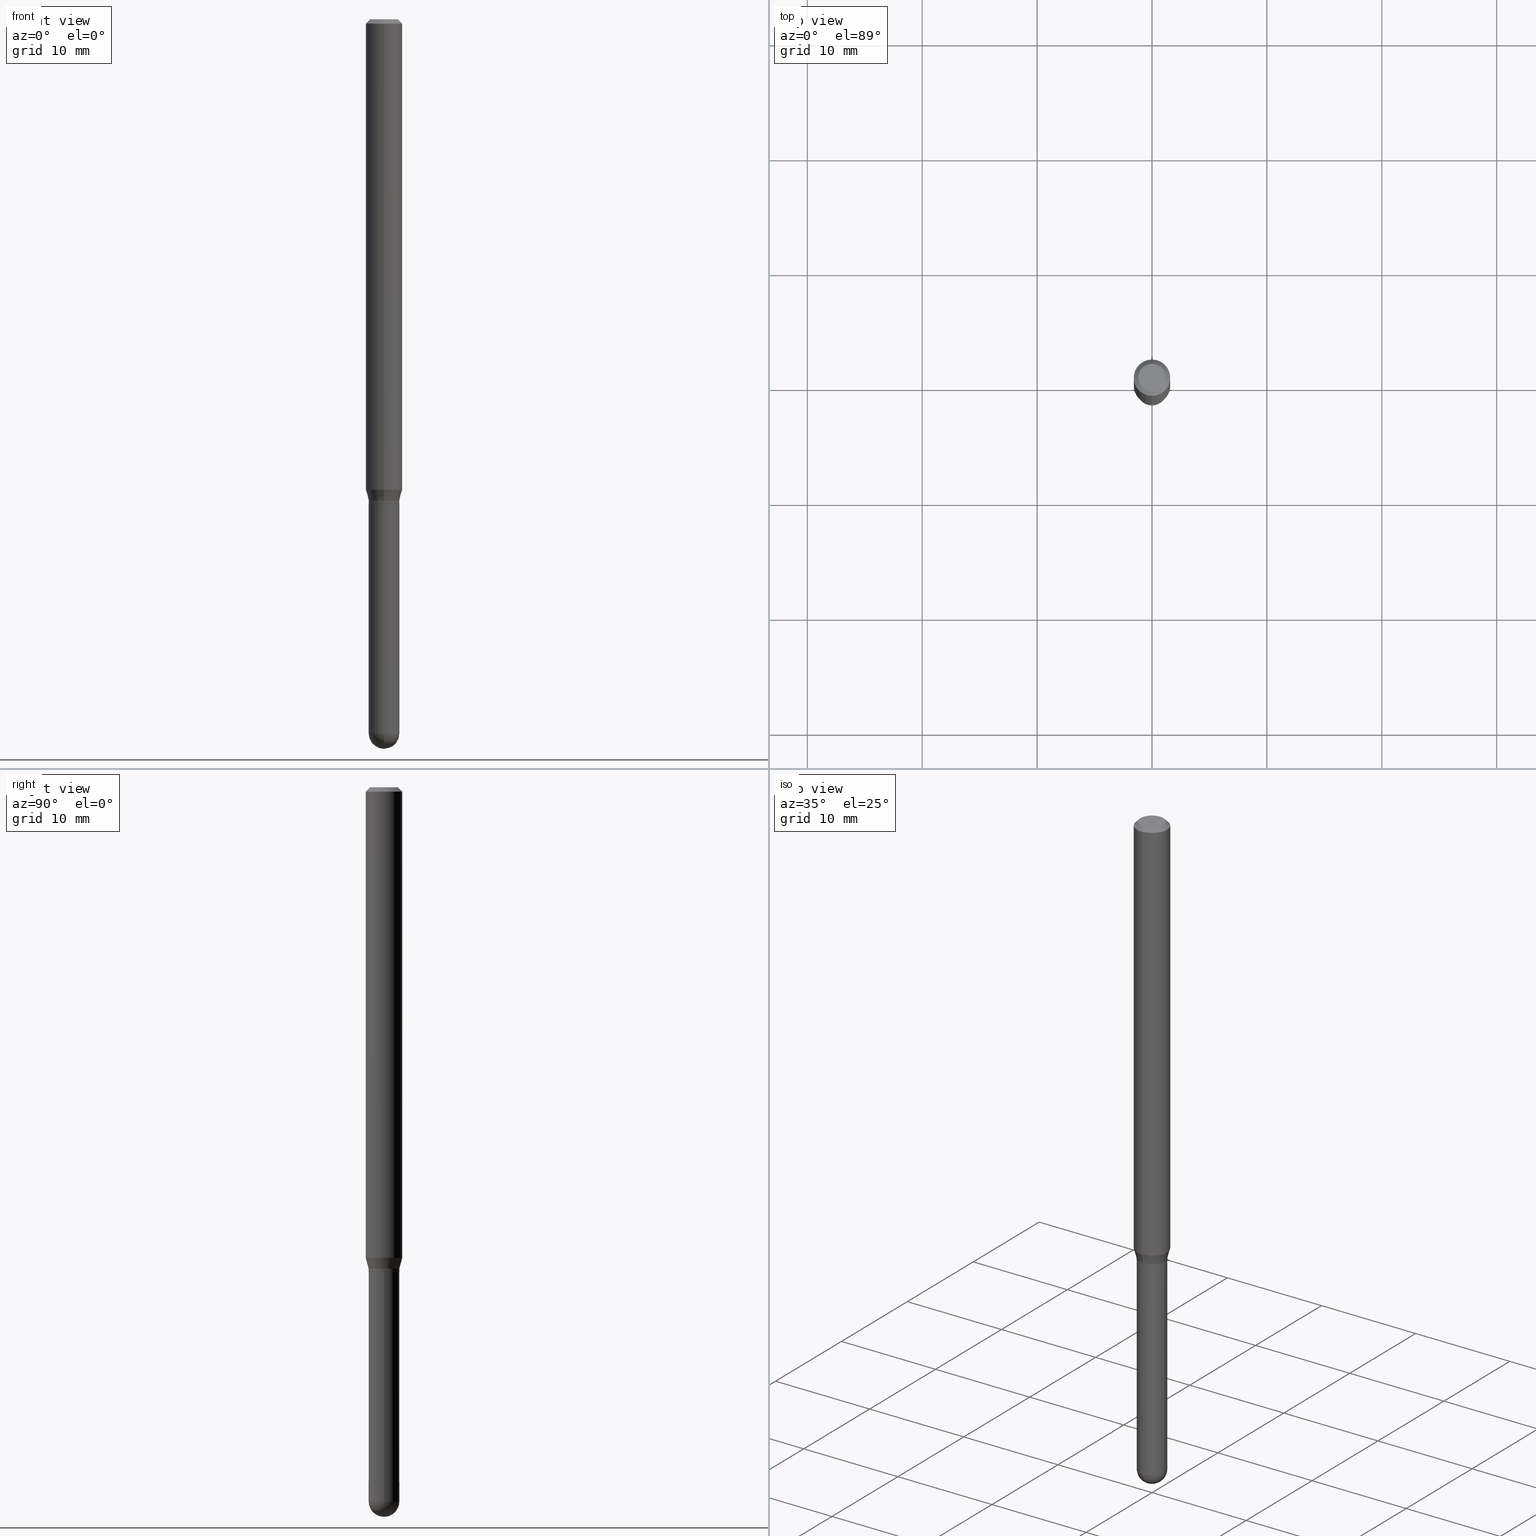
[diagram: canonical four-view strip — front | top / right | iso, engineering-drawing reading convention]
A machine part, canonical four-view strip (front | top / right | iso — engineering-drawing reading convention). The complete STEP part file that produces these views, byte-faithful:
ISO-10303-21;
HEADER;
FILE_DESCRIPTION (( 'STEP AP203' ),
    '1' );
FILE_NAME ('04506.STEP',
    '2024-03-08T20:15:21',
    ( '' ),
    ( '' ),
    'SwSTEP 2.0',
    'SolidWorks 2023',
    '' );
FILE_SCHEMA (( 'CONFIG_CONTROL_DESIGN' ));
ENDSEC;

DATA;
#1 = VERTEX_POINT ( 'NONE', #390 ) ;
#2 = DIRECTION ( 'NONE',  ( -1.000000000000000000, 7.105427357601001070E-15, -4.926315508542082329E-29 ) ) ;
#3 = ORIENTED_EDGE ( 'NONE', *, *, #80, .T. ) ;
#4 = PERSON_AND_ORGANIZATION_ROLE ( 'creator' ) ;
#5 =( GEOMETRIC_REPRESENTATION_CONTEXT ( 3 ) GLOBAL_UNCERTAINTY_ASSIGNED_CONTEXT ( ( #218 ) ) GLOBAL_UNIT_ASSIGNED_CONTEXT ( ( #136, #319, #330 ) ) REPRESENTATION_CONTEXT ( 'NONE', 'WORKASPACE' ) );
#6 = FACE_OUTER_BOUND ( 'NONE', #451, .T. ) ;
#7 = PRODUCT_RELATED_PRODUCT_CATEGORY ( 'detail', '', ( #171 ) ) ;
#8 = ORIENTED_EDGE ( 'NONE', *, *, #338, .F. ) ;
#9 = APPROVAL_STATUS ( 'not_yet_approved' ) ;
#10 = CARTESIAN_POINT ( 'NONE',  ( 3.668046898412900305E-31, -5.237445854319827038E-17, -0.01500000000000006710 ) ) ;
#11 = ADVANCED_FACE ( 'NONE', ( #325 ), #318, .T. ) ;
#12 = CIRCLE ( 'NONE', #260, 0.05250000000000019235 ) ;
#13 = AXIS2_PLACEMENT_3D ( 'NONE', #357, #163, #463 ) ;
#14 = AXIS2_PLACEMENT_3D ( 'NONE', #270, #506, #118 ) ;
#15 = APPROVAL ( #131, 'UNSPECIFIED' ) ;
#16 = APPROVAL_ROLE ( '' ) ;
#17 = CARTESIAN_POINT ( 'NONE',  ( -3.773273898774340269E-16, -0.04749999999999999362, 1.003593064594752903E-16 ) ) ;
#18 = DIRECTION ( 'NONE',  ( -2.445364598941922338E-29, 3.491630569546536123E-15, 1.000000000000000000 ) ) ;
#19 = CALENDAR_DATE ( 2024, 8, 3 ) ;
#20 = AXIS2_PLACEMENT_3D ( 'NONE', #38, #328, #480 ) ;
#21 = CIRCLE ( 'NONE', #388, 0.05249999999999999806 ) ;
#22 = LINE ( 'NONE', #104, #70 ) ;
#23 = APPROVAL_STATUS ( 'not_yet_approved' ) ;
#24 = CC_DESIGN_DATE_AND_TIME_ASSIGNMENT ( #139, #336, ( #251 ) ) ;
#25 = EDGE_LOOP ( 'NONE', ( #428, #193, #308, #108 ) ) ;
#26 = CARTESIAN_POINT ( 'NONE',  ( -0.05249999999999999806, 3.730349362740525838E-16, -2.582440922383825311E-30 ) ) ;
#27 = PRODUCT_DEFINITION_FORMATION_WITH_SPECIFIED_SOURCE ( 'ANY', '', #171, .NOT_KNOWN. ) ;
#28 = CARTESIAN_POINT ( 'NONE',  ( 4.059478218267327378E-29, -5.795859022479622985E-15, -1.660000000000000364 ) ) ;
#29 = ORIENTED_EDGE ( 'NONE', *, *, #274, .T. ) ;
#30 = VERTEX_POINT ( 'NONE', #276 ) ;
#31 = DIRECTION ( 'NONE',  ( -2.445364598941922338E-29, 3.491630569546536123E-15, 1.000000000000000000 ) ) ;
#32 = ORIENTED_EDGE ( 'NONE', *, *, #455, .T. ) ;
#33 = EDGE_LOOP ( 'NONE', ( #72, #344, #8, #227 ) ) ;
#34 = EDGE_CURVE ( 'NONE', #304, #312, #94, .T. ) ;
#35 = CARTESIAN_POINT ( 'NONE',  ( 0.05249999999999999806, -6.162464563058152145E-15, -1.660000000000000364 ) ) ;
#36 = AXIS2_PLACEMENT_3D ( 'NONE', #247, #316, #503 ) ;
#37 = AXIS2_PLACEMENT_3D ( 'NONE', #202, #355, #510 ) ;
#38 = CARTESIAN_POINT ( 'NONE',  ( 4.034851588254172670E-29, -5.761190439751784880E-15, -1.650000000000000133 ) ) ;
#39 = DIRECTION ( 'NONE',  ( -6.982962677686266711E-15, -1.000000000000000000, 5.253553833969737838E-15 ) ) ;
#40 = VERTEX_POINT ( 'NONE', #475 ) ;
#41 = EDGE_CURVE ( 'NONE', #1, #269, #425, .T. ) ;
#42 = FACE_OUTER_BOUND ( 'NONE', #111, .T. ) ;
#43 = DIRECTION ( 'NONE',  ( -6.982962677686265922E-15, -1.000000000000000000, 3.491630569546535729E-15 ) ) ;
#44 = VERTEX_POINT ( 'NONE', #358 ) ;
#45 = CARTESIAN_POINT ( 'NONE',  ( 4.059305234243592639E-29, -5.796106745447252600E-15, -1.660000000000000586 ) ) ;
#46 = ADVANCED_FACE ( 'NONE', ( #6 ), #137, .T. ) ;
#47 = DIRECTION ( 'NONE',  ( -2.445364598941922338E-29, 3.491630569546536123E-15, 1.000000000000000000 ) ) ;
#48 = PERSON_AND_ORGANIZATION_ROLE ( 'design_owner' ) ;
#49 = ORIENTED_EDGE ( 'NONE', *, *, #180, .T. ) ;
#50 = MECHANICAL_CONTEXT ( 'NONE', #146, 'mechanical' ) ;
#51 = ADVANCED_FACE ( 'NONE', ( #212 ), #509, .T. ) ;
#52 = CARTESIAN_POINT ( 'NONE',  ( 3.943589338991358859E-29, -5.630881012883705018E-15, -1.612679491924312369 ) ) ;
#53 = DIRECTION ( 'NONE',  ( 4.937700262164548042E-15, 0.7071067811865451302, -0.7071067811865499042 ) ) ;
#54 = PERSON ( 'UNSPECIFIED', 'UNSPECIFIED', 'UNSPECIFIED', ('UNSPECIFIED'), ('UNSPECIFIED'), ('UNSPECIFIED') ) ;
#55 = ADVANCED_FACE ( 'NONE', ( #210 ), #287, .F. ) ;
#56 = CARTESIAN_POINT ( 'NONE',  ( 4.059305234243592639E-29, -5.796106745447252600E-15, -1.660000000000000586 ) ) ;
#57 = APPROVAL_DATE_TIME ( #255, #278 ) ;
#58 = DIRECTION ( 'NONE',  ( -6.982962677686265922E-15, -1.000000000000000000, 4.370956789862821150E-15 ) ) ;
#59 = VECTOR ( 'NONE', #429, 39.37007874015748143 ) ;
#60 = CIRCLE ( 'NONE', #101, 0.06250000000000000000 ) ;
#61 = LINE ( 'NONE', #102, #107 ) ;
#62 = FACE_OUTER_BOUND ( 'NONE', #346, .T. ) ;
#63 = CIRCLE ( 'NONE', #299, 0.05250000000000002581 ) ;
#64 = VECTOR ( 'NONE', #315, 39.37007874015748143 ) ;
#65 = APPROVAL_DATE_TIME ( #98, #466 ) ;
#66 = ADVANCED_FACE ( 'NONE', ( #91 ), #144, .T. ) ;
#67 = VERTEX_POINT ( 'NONE', #248 ) ;
#68 = EDGE_CURVE ( 'NONE', #44, #348, #442, .T. ) ;
#69 = LINE ( 'NONE', #26, #64 ) ;
#70 = VECTOR ( 'NONE', #486, 39.37007874015748143 ) ;
#71 = VECTOR ( 'NONE', #134, 39.37007874015748143 ) ;
#72 = ORIENTED_EDGE ( 'NONE', *, *, #389, .F. ) ;
#73 = VERTEX_POINT ( 'NONE', #397 ) ;
#74 = FACE_OUTER_BOUND ( 'NONE', #147, .T. ) ;
#75 = CARTESIAN_POINT ( 'NONE',  ( 0.000000000000000000, 0.000000000000000000, 0.000000000000000000 ) ) ;
#76 = VERTEX_POINT ( 'NONE', #464 ) ;
#77 = DIRECTION ( 'NONE',  ( -2.445468806185136597E-29, 3.491481338843145583E-15, 1.000000000000000000 ) ) ;
#78 = CARTESIAN_POINT ( 'NONE',  ( 4.034851588254172670E-29, -5.761190439751784880E-15, -1.650000000000000133 ) ) ;
#79 = DIRECTION ( 'NONE',  ( 1.000000000000000000, -6.982962677686268288E-15, 0.000000000000000000 ) ) ;
#80 = EDGE_CURVE ( 'NONE', #382, #73, #242, .T. ) ;
#81 = ORIENTED_EDGE ( 'NONE', *, *, #156, .F. ) ;
#82 = CIRCLE ( 'NONE', #377, 0.06250000000000000000 ) ;
#83 = AXIS2_PLACEMENT_3D ( 'NONE', #349, #379, #371 ) ;
#84 = VECTOR ( 'NONE', #347, 39.37007874015748143 ) ;
#85 = DIRECTION ( 'NONE',  ( -2.445364598941922338E-29, 3.491630569546536123E-15, 1.000000000000000000 ) ) ;
#86 =( LENGTH_UNIT ( ) NAMED_UNIT ( * ) SI_UNIT ( $, .METRE. ) );
#87 = FACE_OUTER_BOUND ( 'NONE', #392, .T. ) ;
#88 = APPLICATION_PROTOCOL_DEFINITION ( 'international standard', 'config_control_design', 1994, #146 ) ;
#89 = VERTEX_POINT ( 'NONE', #127 ) ;
#90 = CARTESIAN_POINT ( 'NONE',  ( 0.000000000000000000, 0.000000000000000000, 0.000000000000000000 ) ) ;
#91 = FACE_OUTER_BOUND ( 'NONE', #310, .T. ) ;
#92 = DIRECTION ( 'NONE',  ( 6.982962677686265922E-15, 1.000000000000000000, -3.491630569546536123E-15 ) ) ;
#93 = CARTESIAN_POINT ( 'NONE',  ( 0.000000000000000000, 0.000000000000000000, 0.000000000000000000 ) ) ;
#94 = CIRCLE ( 'NONE', #361, 0.04749999999999999362 ) ;
#95 = CARTESIAN_POINT ( 'NONE',  ( 3.666055405785695399E-16, 0.05249999999999419714, -1.660000000000000586 ) ) ;
#96 = EDGE_CURVE ( 'NONE', #350, #348, #395, .T. ) ;
#97 = CARTESIAN_POINT ( 'NONE',  ( 3.694822225952925581E-16, 0.05199999999999419670, -1.660000000000000808 ) ) ;
#98 = DATE_AND_TIME ( #99, #324 ) ;
#99 = CALENDAR_DATE ( 2024, 8, 3 ) ;
#100 = VECTOR ( 'NONE', #141, 39.37007874015748143 ) ;
#101 = AXIS2_PLACEMENT_3D ( 'NONE', #391, #253, #512 ) ;
#102 = CARTESIAN_POINT ( 'NONE',  ( 3.730349362740942455E-16, 0.05249999999999442613, -1.650000000000000355 ) ) ;
#103 = CYLINDRICAL_SURFACE ( 'NONE', #241, 0.05249999999999991479 ) ;
#104 = CARTESIAN_POINT ( 'NONE',  ( -3.631140592396452308E-16, -0.05200000000000579159, -1.660000000000000364 ) ) ;
#105 = PERSON_AND_ORGANIZATION ( #54, #456 ) ;
#106 = ADVANCED_FACE ( 'NONE', ( #87 ), #434, .T. ) ;
#107 = VECTOR ( 'NONE', #221, 39.37007874015748854 ) ;
#108 = ORIENTED_EDGE ( 'NONE', *, *, #488, .F. ) ;
#109 = EDGE_CURVE ( 'NONE', #382, #1, #300, .T. ) ;
#110 = EDGE_LOOP ( 'NONE', ( #230, #3, #246, #228 ) ) ;
#111 = EDGE_LOOP ( 'NONE', ( #191, #380, #305, #279, #396 ) ) ;
#112 = CARTESIAN_POINT ( 'NONE',  ( 0.000000000000000000, 0.000000000000000000, 0.000000000000000000 ) ) ;
#113 = AXIS2_PLACEMENT_3D ( 'NONE', #497, #458, #150 ) ;
#114 = EDGE_LOOP ( 'NONE', ( #383, #187, #117, #174 ) ) ;
#115 = CYLINDRICAL_SURFACE ( 'NONE', #14, 0.05249999999999991479 ) ;
#116 = ORIENTED_EDGE ( 'NONE', *, *, #109, .T. ) ;
#117 = ORIENTED_EDGE ( 'NONE', *, *, #96, .T. ) ;
#118 = DIRECTION ( 'NONE',  ( -6.982962677686266711E-15, -1.000000000000000000, 3.491630569546536123E-15 ) ) ;
#119 = ORIENTED_EDGE ( 'NONE', *, *, #109, .F. ) ;
#120 = ADVANCED_BREP_SHAPE_REPRESENTATION ( '04506', ( #333, #152, #378 ), #5 ) ;
#121 = DIRECTION ( 'NONE',  ( -6.982962677686265922E-15, -1.000000000000000000, 3.483106191921935554E-15 ) ) ;
#122 = CARTESIAN_POINT ( 'NONE',  ( -0.05249999999999999806, -6.797594863375057759E-15, -2.447500000000000231 ) ) ;
#123 = CALENDAR_DATE ( 2024, 8, 3 ) ;
#124 = ORIENTED_EDGE ( 'NONE', *, *, #203, .F. ) ;
#125 = VECTOR ( 'NONE', #478, 39.37007874015748143 ) ;
#126 = CARTESIAN_POINT ( 'NONE',  ( 4.058082551944121360E-29, -5.794360930162478109E-15, -1.659500000000000419 ) ) ;
#127 = CARTESIAN_POINT ( 'NONE',  ( 6.111427203953745667E-29, -8.731918044955625447E-15, -2.500000000000000000 ) ) ;
#128 = CARTESIAN_POINT ( 'NONE',  ( 0.000000000000000000, 0.000000000000000000, 0.000000000000000000 ) ) ;
#129 = CYLINDRICAL_SURFACE ( 'NONE', #198, 0.05249999999999999806 ) ;
#130 = CARTESIAN_POINT ( 'NONE',  ( -4.364351673553916201E-16, -0.06250000000000000000, 2.182269105966584831E-16 ) ) ;
#131 = APPROVAL_STATUS ( 'not_yet_approved' ) ;
#132 = CARTESIAN_POINT ( 'NONE',  ( 5.980795280119930350E-29, -8.551829972514122554E-15, -2.447500000000000231 ) ) ;
#133 = CARTESIAN_POINT ( 'NONE',  ( 0.000000000000000000, 0.000000000000000000, 0.000000000000000000 ) ) ;
#134 = DIRECTION ( 'NONE',  ( -2.445364598941922057E-29, 3.491630569546536123E-15, 1.000000000000000000 ) ) ;
#135 = CARTESIAN_POINT ( 'NONE',  ( 5.980795280119930350E-29, -8.551829972514122554E-15, -2.447500000000000231 ) ) ;
#136 =( CONVERSION_BASED_UNIT ( 'INCH', #284 ) LENGTH_UNIT ( ) NAMED_UNIT ( #479 ) );
#137 = CONICAL_SURFACE ( 'NONE', #20, 0.05250000000000019235, 0.2617993877991508511 ) ;
#138 = AXIS2_PLACEMENT_3D ( 'NONE', #381, #306, #194 ) ;
#139 = DATE_AND_TIME ( #19, #483 ) ;
#140 = EDGE_CURVE ( 'NONE', #76, #271, #231, .T. ) ;
#141 = DIRECTION ( 'NONE',  ( 5.024295867785445738E-15, 0.7071067811861817543, 0.7071067811869132802 ) ) ;
#142 = EDGE_CURVE ( 'NONE', #348, #44, #12, .T. ) ;
#143 = DIRECTION ( 'NONE',  ( 1.000000000000000000, -6.982962677686268288E-15, 0.000000000000000000 ) ) ;
#144 = CONICAL_SURFACE ( 'NONE', #504, 0.05250000000000019235, 0.2617993877991508511 ) ;
#145 = AXIS2_PLACEMENT_3D ( 'NONE', #188, #266, #419 ) ;
#146 = APPLICATION_CONTEXT ( 'configuration controlled 3d designs of mechanical parts and assemblies' ) ;
#147 = EDGE_LOOP ( 'NONE', ( #453, #116, #153, #195 ) ) ;
#148 = AXIS2_PLACEMENT_3D ( 'NONE', #10, #401, #441 ) ;
#149 = ORIENTED_EDGE ( 'NONE', *, *, #494, .T. ) ;
#150 = DIRECTION ( 'NONE',  ( -6.982962677686265133E-15, -1.000000000000000000, 5.203519987931965439E-15 ) ) ;
#151 = ORIENTED_EDGE ( 'NONE', *, *, #302, .T. ) ;
#152 = MANIFOLD_SOLID_BREP ( 'Body-Move/Copy2[2]', #249 ) ;
#153 = ORIENTED_EDGE ( 'NONE', *, *, #41, .T. ) ;
#154 = CARTESIAN_POINT ( 'NONE',  ( 3.666055405785888670E-16, 0.05249999999999146322, -2.447500000000000231 ) ) ;
#155 = ORIENTED_EDGE ( 'NONE', *, *, #142, .T. ) ;
#156 = EDGE_CURVE ( 'NONE', #301, #350, #22, .T. ) ;
#157 = CARTESIAN_POINT ( 'NONE',  ( 3.316907271900976096E-16, 0.04749999999999999362, -1.985990248504530406E-16 ) ) ;
#158 = ORIENTED_EDGE ( 'NONE', *, *, #389, .T. ) ;
#159 = CARTESIAN_POINT ( 'NONE',  ( 5.980795280119930350E-29, -8.551829972514122554E-15, -2.447500000000000231 ) ) ;
#160 = ORIENTED_EDGE ( 'NONE', *, *, #34, .T. ) ;
#161 = EDGE_CURVE ( 'NONE', #67, #40, #290, .T. ) ;
#162 = DIRECTION ( 'NONE',  ( -2.445364598941922057E-29, 3.491630569546536123E-15, 1.000000000000000000 ) ) ;
#163 = DIRECTION ( 'NONE',  ( -2.445364598941922338E-29, 3.491630569546536123E-15, 1.000000000000000000 ) ) ;
#164 = DIRECTION ( 'NONE',  ( -2.445364598941922338E-29, 3.491630569546536123E-15, 1.000000000000000000 ) ) ;
#165 = ORIENTED_EDGE ( 'NONE', *, *, #508, .F. ) ;
#166 = AXIS2_PLACEMENT_3D ( 'NONE', #452, #461, #408 ) ;
#167 = DIRECTION ( 'NONE',  ( -7.105427357601001070E-15, -1.000000000000000000, 0.000000000000000000 ) ) ;
#168 = CIRCLE ( 'NONE', #145, 0.05249999999999999806 ) ;
#169 = DATE_TIME_ROLE ( 'creation_date' ) ;
#170 = DIRECTION ( 'NONE',  ( -2.445468806185136597E-29, 3.491481338843145583E-15, 1.000000000000000000 ) ) ;
#171 = PRODUCT ( '04506', '04506', '', ( #50 ) ) ;
#172 = CARTESIAN_POINT ( 'NONE',  ( 4.440892098500625669E-16, 0.06250000000000000000, -2.182269105966584831E-16 ) ) ;
#173 = DIRECTION ( 'NONE',  ( -1.807323732225333689E-15, -0.2588190451025186856, 0.9659258262890687563 ) ) ;
#174 = ORIENTED_EDGE ( 'NONE', *, *, #68, .F. ) ;
#175 = DIRECTION ( 'NONE',  ( 0.000000000000000000, 0.000000000000000000, 1.000000000000000000 ) ) ;
#176 = AXIS2_PLACEMENT_3D ( 'NONE', #511, #364, #363 ) ;
#177 = CIRCLE ( 'NONE', #37, 0.05249999999999999806 ) ;
#178 = DESIGN_CONTEXT ( 'detailed design', #208, 'design' ) ;
#179 = PERSON_AND_ORGANIZATION_ROLE ( 'classification_officer' ) ;
#180 = EDGE_CURVE ( 'NONE', #312, #304, #416, .T. ) ;
#181 = COORDINATED_UNIVERSAL_TIME_OFFSET ( 5, 0, .BEHIND. ) ;
#182 = CIRCLE ( 'NONE', #83, 0.05250000000000002581 ) ;
#183 = DIRECTION ( 'NONE',  ( -2.445364598941922338E-29, 3.491630569546536123E-15, 1.000000000000000000 ) ) ;
#184 = ADVANCED_FACE ( 'NONE', ( #402 ), #471, .T. ) ;
#185 = ORIENTED_EDGE ( 'NONE', *, *, #317, .T. ) ;
#186 = EDGE_CURVE ( 'NONE', #89, #30, #63, .T. ) ;
#187 = ORIENTED_EDGE ( 'NONE', *, *, #203, .T. ) ;
#188 = CARTESIAN_POINT ( 'NONE',  ( 5.985284903138122000E-29, -8.545400576818598390E-15, -2.447500000000000231 ) ) ;
#189 = AXIS2_PLACEMENT_3D ( 'NONE', #157, #433, #92 ) ;
#190 = VECTOR ( 'NONE', #398, 39.37007874015748143 ) ;
#191 = ORIENTED_EDGE ( 'NONE', *, *, #374, .F. ) ;
#192 = LINE ( 'NONE', #351, #84 ) ;
#193 = ORIENTED_EDGE ( 'NONE', *, *, #485, .T. ) ;
#194 = DIRECTION ( 'NONE',  ( 6.982962677686265922E-15, 1.000000000000000000, -3.483106191921935554E-15 ) ) ;
#195 = ORIENTED_EDGE ( 'NONE', *, *, #317, .F. ) ;
#196 = ORIENTED_EDGE ( 'NONE', *, *, #274, .F. ) ;
#197 = ORIENTED_EDGE ( 'NONE', *, *, #341, .F. ) ;
#198 = AXIS2_PLACEMENT_3D ( 'NONE', #90, #77, #386 ) ;
#199 = APPROVAL_PERSON_ORGANIZATION ( #211, #278, #360 ) ;
#200 = DIRECTION ( 'NONE',  ( -6.982962677686266711E-15, -1.000000000000000000, 5.253553833969737838E-15 ) ) ;
#201 = DIRECTION ( 'NONE',  ( -6.982962677686266711E-15, -1.000000000000000000, 3.491630569546536518E-15 ) ) ;
#202 = CARTESIAN_POINT ( 'NONE',  ( 5.985284903138122000E-29, -8.545400576818598390E-15, -2.447500000000000231 ) ) ;
#203 = EDGE_CURVE ( 'NONE', #40, #350, #342, .T. ) ;
#204 = FACE_OUTER_BOUND ( 'NONE', #234, .T. ) ;
#205 = CARTESIAN_POINT ( 'NONE',  ( 1.601546197088804258E-45, -2.286778692517206299E-31, -6.549314559398515043E-17 ) ) ;
#206 = PERSON_AND_ORGANIZATION ( #54, #456 ) ;
#207 = ORIENTED_EDGE ( 'NONE', *, *, #415, .F. ) ;
#208 = APPLICATION_CONTEXT ( 'configuration controlled 3d designs of mechanical parts and assemblies' ) ;
#209 = LOCAL_TIME ( 15, 15, 21.00000000000000000, #489 ) ;
#210 = FACE_OUTER_BOUND ( 'NONE', #498, .T. ) ;
#211 = PERSON_AND_ORGANIZATION ( #54, #456 ) ;
#212 = FACE_OUTER_BOUND ( 'NONE', #495, .T. ) ;
#213 = LINE ( 'NONE', #470, #71 ) ;
#214 = PERSON_AND_ORGANIZATION ( #54, #456 ) ;
#215 = EDGE_CURVE ( 'NONE', #446, #275, #267, .T. ) ;
#216 = AXIS2_PLACEMENT_3D ( 'NONE', #93, #252, #400 ) ;
#217 = DATE_AND_TIME ( #259, #209 ) ;
#218 = UNCERTAINTY_MEASURE_WITH_UNIT (LENGTH_MEASURE( 1.000000000000000082E-05 ), #136, 'distance_accuracy_value', 'NONE');
#219 = ADVANCED_FACE ( 'NONE', ( #42 ), #129, .T. ) ;
#220 = PERSON_AND_ORGANIZATION ( #54, #456 ) ;
#221 = DIRECTION ( 'NONE',  ( 1.839019923739603865E-15, 0.2588190451025254579, 0.9659258262890669799 ) ) ;
#222 = CARTESIAN_POINT ( 'NONE',  ( -3.666055405784852797E-16, -0.05250000000000534794, -1.659500000000000197 ) ) ;
#223 = CLOSED_SHELL ( 'NONE', ( #106, #403, #500, #51, #219 ) ) ;
#224 = CC_DESIGN_APPROVAL ( #15, ( #27 ) ) ;
#225 = PERSON_AND_ORGANIZATION_ROLE ( 'design_supplier' ) ;
#226 = ADVANCED_FACE ( 'NONE', ( #204 ), #323, .T. ) ;
#227 = ORIENTED_EDGE ( 'NONE', *, *, #215, .F. ) ;
#228 = ORIENTED_EDGE ( 'NONE', *, *, #41, .F. ) ;
#229 = ORIENTED_EDGE ( 'NONE', *, *, #406, .T. ) ;
#230 = ORIENTED_EDGE ( 'NONE', *, *, #508, .T. ) ;
#231 = CIRCLE ( 'NONE', #372, 0.05249999999999999806 ) ;
#232 = CIRCLE ( 'NONE', #113, 0.05249999999999964417 ) ;
#233 = ORIENTED_EDGE ( 'NONE', *, *, #393, .F. ) ;
#234 = EDGE_LOOP ( 'NONE', ( #298, #245, #207, #81 ) ) ;
#235 = CARTESIAN_POINT ( 'NONE',  ( -3.666055405784899636E-16, -0.05250000000000595163, -1.649999999999999911 ) ) ;
#236 = VERTEX_POINT ( 'NONE', #327 ) ;
#237 = DIRECTION ( 'NONE',  ( -2.445364598941922338E-29, 3.491630569546536123E-15, 1.000000000000000000 ) ) ;
#238 = DIRECTION ( 'NONE',  ( -2.445364598941922338E-29, 3.491630569546536123E-15, 1.000000000000000000 ) ) ;
#239 = ORIENTED_EDGE ( 'NONE', *, *, #302, .F. ) ;
#240 = CC_DESIGN_PERSON_AND_ORGANIZATION_ASSIGNMENT ( #220, #225, ( #27 ) ) ;
#241 = AXIS2_PLACEMENT_3D ( 'NONE', #75, #295, #384 ) ;
#242 = LINE ( 'NONE', #172, #125 ) ;
#243 = EDGE_LOOP ( 'NONE', ( #49, #160 ) ) ;
#244 = DIRECTION ( 'NONE',  ( 1.000000000000000000, -6.982962677686250144E-15, 0.000000000000000000 ) ) ;
#245 = ORIENTED_EDGE ( 'NONE', *, *, #161, .T. ) ;
#246 = ORIENTED_EDGE ( 'NONE', *, *, #262, .F. ) ;
#247 = CARTESIAN_POINT ( 'NONE',  ( 4.059305234243592639E-29, -5.796106745447252600E-15, -1.660000000000000586 ) ) ;
#248 = CARTESIAN_POINT ( 'NONE',  ( 3.712585794346919227E-16, 0.05199999999999419670, -1.660000000000000808 ) ) ;
#249 = CLOSED_SHELL ( 'NONE', ( #343, #226, #445, #11, #46, #66, #368, #291, #254, #55, #184, #450 ) ) ;
#250 = DIRECTION ( 'NONE',  ( -2.445364598941922338E-29, 3.491630569546536123E-15, 1.000000000000000000 ) ) ;
#251 = SECURITY_CLASSIFICATION ( '', '', #370 ) ;
#252 = DIRECTION ( 'NONE',  ( -2.445468806185136597E-29, 3.491481338843145583E-15, 1.000000000000000000 ) ) ;
#253 = DIRECTION ( 'NONE',  ( -2.445364598941922338E-29, 3.491630569546536123E-15, 1.000000000000000000 ) ) ;
#254 = ADVANCED_FACE ( 'NONE', ( #272 ), #477, .F. ) ;
#255 = DATE_AND_TIME ( #481, #472 ) ;
#256 = CARTESIAN_POINT ( 'NONE',  ( -3.631140592396452308E-16, -0.05200000000000579159, -1.660000000000000364 ) ) ;
#257 = AXIS2_PLACEMENT_3D ( 'NONE', #45, #314, #200 ) ;
#258 = VECTOR ( 'NONE', #53, 39.37007874015748143 ) ;
#259 = CALENDAR_DATE ( 2024, 8, 3 ) ;
#260 = AXIS2_PLACEMENT_3D ( 'NONE', #439, #492, #444 ) ;
#261 = ORIENTED_EDGE ( 'NONE', *, *, #186, .F. ) ;
#262 = EDGE_CURVE ( 'NONE', #269, #73, #331, .T. ) ;
#263 = CYLINDRICAL_SURFACE ( 'NONE', #362, 0.06250000000000000000 ) ;
#264 = DIRECTION ( 'NONE',  ( -2.445364598941922338E-29, 3.491630569546536123E-15, 1.000000000000000000 ) ) ;
#265 = EDGE_LOOP ( 'NONE', ( #413, #424 ) ) ;
#266 = DIRECTION ( 'NONE',  ( -2.445468806185136597E-29, 3.491481338843145583E-15, 1.000000000000000000 ) ) ;
#267 = CIRCLE ( 'NONE', #410, 0.05249999999999999806 ) ;
#268 = CC_DESIGN_SECURITY_CLASSIFICATION ( #251, ( #27 ) ) ;
#269 = VERTEX_POINT ( 'NONE', #394 ) ;
#270 = CARTESIAN_POINT ( 'NONE',  ( 0.000000000000000000, 0.000000000000000000, 0.000000000000000000 ) ) ;
#271 = VERTEX_POINT ( 'NONE', #35 ) ;
#272 = FACE_OUTER_BOUND ( 'NONE', #243, .T. ) ;
#273 = FACE_OUTER_BOUND ( 'NONE', #25, .T. ) ;
#274 = EDGE_CURVE ( 'NONE', #67, #301, #447, .T. ) ;
#275 = VERTEX_POINT ( 'NONE', #122 ) ;
#276 = CARTESIAN_POINT ( 'NONE',  ( -3.730349362739928276E-16, -0.05250000000000856065, -2.447499999999999787 ) ) ;
#277 = DATE_AND_TIME ( #123, #417 ) ;
#278 = APPROVAL ( #9, 'UNSPECIFIED' ) ;
#279 = ORIENTED_EDGE ( 'NONE', *, *, #393, .T. ) ;
#280 = CIRCLE ( 'NONE', #443, 0.05199999999999999067 ) ;
#281 = CARTESIAN_POINT ( 'NONE',  ( -3.666055405785284205E-16, -0.05249999999999991479, 1.833106049011928585E-16 ) ) ;
#282 = DIRECTION ( 'NONE',  ( 1.000000000000000000, 0.000000000000000000, 0.000000000000000000 ) ) ;
#283 = PRODUCT_DEFINITION_SHAPE ( 'NONE', 'NONE',  #307 ) ;
#284 = LENGTH_MEASURE_WITH_UNIT ( LENGTH_MEASURE( 0.02539999999999999897 ), #86 );
#285 = CC_DESIGN_PERSON_AND_ORGANIZATION_ASSIGNMENT ( #293, #179, ( #251 ) ) ;
#286 = DIRECTION ( 'NONE',  ( -6.982962677686265133E-15, -1.000000000000000000, 5.203519987931965439E-15 ) ) ;
#287 = PLANE ( 'NONE',  #176 ) ;
#288 = LINE ( 'NONE', #329, #190 ) ;
#289 = VECTOR ( 'NONE', #162, 39.37007874015748143 ) ;
#290 = LINE ( 'NONE', #97, #100 ) ;
#291 = ADVANCED_FACE ( 'NONE', ( #369 ), #496, .T. ) ;
#292 = AXIS2_PLACEMENT_3D ( 'NONE', #133, #237, #43 ) ;
#293 = PERSON_AND_ORGANIZATION ( #54, #456 ) ;
#294 = CC_DESIGN_APPROVAL ( #278, ( #307 ) ) ;
#295 = DIRECTION ( 'NONE',  ( -2.445364598941922338E-29, 3.491630569546536123E-15, 1.000000000000000000 ) ) ;
#296 = CARTESIAN_POINT ( 'NONE',  ( 3.840629472727447874E-16, 0.04749999999999999362, -2.313455976474456035E-16 ) ) ;
#297 = CC_DESIGN_PERSON_AND_ORGANIZATION_ASSIGNMENT ( #214, #4, ( #307 ) ) ;
#298 = ORIENTED_EDGE ( 'NONE', *, *, #385, .T. ) ;
#299 = AXIS2_PLACEMENT_3D ( 'NONE', #132, #2, #167 ) ;
#300 = CIRCLE ( 'NONE', #482, 0.06250000000000000000 ) ;
#301 = VERTEX_POINT ( 'NONE', #256 ) ;
#302 = EDGE_CURVE ( 'NONE', #44, #382, #61, .T. ) ;
#303 = AXIS2_PLACEMENT_3D ( 'NONE', #95, #476, #432 ) ;
#304 = VERTEX_POINT ( 'NONE', #17 ) ;
#305 = ORIENTED_EDGE ( 'NONE', *, *, #322, .T. ) ;
#306 = DIRECTION ( 'NONE',  ( 2.445364598941922338E-29, -3.491630569546536123E-15, -1.000000000000000000 ) ) ;
#307 = PRODUCT_DEFINITION ( 'UNKNOWN', '', #27, #178 ) ;
#308 = ORIENTED_EDGE ( 'NONE', *, *, #262, .T. ) ;
#309 = SPHERICAL_SURFACE ( 'NONE', #337, 0.05250000000000002581 ) ;
#310 = EDGE_LOOP ( 'NONE', ( #239, #356, #32, #119 ) ) ;
#311 = CARTESIAN_POINT ( 'NONE',  ( 4.059305234243592639E-29, -5.796106745447252600E-15, -1.660000000000000586 ) ) ;
#312 = VERTEX_POINT ( 'NONE', #296 ) ;
#313 = APPROVAL_PERSON_ORGANIZATION ( #326, #15, #484 ) ;
#314 = DIRECTION ( 'NONE',  ( -2.445364598941922338E-29, 3.491630569546536123E-15, 1.000000000000000000 ) ) ;
#315 = DIRECTION ( 'NONE',  ( -2.445468806185136877E-29, 3.491481338843145188E-15, 1.000000000000000000 ) ) ;
#316 = DIRECTION ( 'NONE',  ( -2.445364598941922338E-29, 3.491630569546536123E-15, 1.000000000000000000 ) ) ;
#317 = EDGE_CURVE ( 'NONE', #73, #269, #82, .T. ) ;
#318 = CYLINDRICAL_SURFACE ( 'NONE', #292, 0.06250000000000000000 ) ;
#319 =( NAMED_UNIT ( * ) PLANE_ANGLE_UNIT ( ) SI_UNIT ( $, .RADIAN. ) );
#320 = EDGE_LOOP ( 'NONE', ( #462, #412, #459, #185 ) ) ;
#321 = CARTESIAN_POINT ( 'NONE',  ( 4.034851588254172670E-29, -5.761190439751784880E-15, -1.650000000000000133 ) ) ;
#322 = EDGE_CURVE ( 'NONE', #30, #236, #367, .T. ) ;
#323 = CONICAL_SURFACE ( 'NONE', #36, 0.05199999999999999067, 0.7853981633969275844 ) ;
#324 = LOCAL_TIME ( 15, 15, 21.00000000000000000, #411 ) ;
#325 = FACE_OUTER_BOUND ( 'NONE', #110, .T. ) ;
#326 = PERSON_AND_ORGANIZATION ( #54, #456 ) ;
#327 = CARTESIAN_POINT ( 'NONE',  ( 0.05249999999999999806, -7.537235340227639453E-15, -2.447500000000000231 ) ) ;
#328 = DIRECTION ( 'NONE',  ( -2.445364598941922338E-29, 3.491630569546536123E-15, 1.000000000000000000 ) ) ;
#329 = CARTESIAN_POINT ( 'NONE',  ( -4.287811248607203282E-16, -0.06250000000000005551, -0.01499999999999984852 ) ) ;
#330 =( NAMED_UNIT ( * ) SI_UNIT ( $, .STERADIAN. ) SOLID_ANGLE_UNIT ( ) );
#331 = CIRCLE ( 'NONE', #13, 0.06250000000000000000 ) ;
#332 = CC_DESIGN_PERSON_AND_ORGANIZATION_ASSIGNMENT ( #105, #340, ( #27 ) ) ;
#333 = MANIFOLD_SOLID_BREP ( 'Body-Move/Copy2[1]', #223 ) ;
#334 = CARTESIAN_POINT ( 'NONE',  ( 4.059478218267327378E-29, -5.795859022479622985E-15, -1.660000000000000364 ) ) ;
#335 = DIRECTION ( 'NONE',  ( -2.445468806185136597E-29, 3.491481338843145583E-15, 1.000000000000000000 ) ) ;
#336 = DATE_TIME_ROLE ( 'classification_date' ) ;
#337 = AXIS2_PLACEMENT_3D ( 'NONE', #159, #454, #387 ) ;
#338 = EDGE_CURVE ( 'NONE', #275, #30, #177, .T. ) ;
#339 = DIRECTION ( 'NONE',  ( -6.982962677686266711E-15, -1.000000000000000000, 3.491630569546536518E-15 ) ) ;
#340 = PERSON_AND_ORGANIZATION_ROLE ( 'creator' ) ;
#341 = EDGE_CURVE ( 'NONE', #271, #76, #21, .T. ) ;
#342 = CIRCLE ( 'NONE', #352, 0.05249999999999964417 ) ;
#343 = ADVANCED_FACE ( 'NONE', ( #62 ), #103, .T. ) ;
#344 = ORIENTED_EDGE ( 'NONE', *, *, #186, .T. ) ;
#345 = DIRECTION ( 'NONE',  ( -2.445468806185136597E-29, 3.491481338843145583E-15, 1.000000000000000000 ) ) ;
#346 = EDGE_LOOP ( 'NONE', ( #467, #149, #418, #375 ) ) ;
#347 = DIRECTION ( 'NONE',  ( -2.445468806185136877E-29, 3.491481338843145188E-15, 1.000000000000000000 ) ) ;
#348 = VERTEX_POINT ( 'NONE', #235 ) ;
#349 = CARTESIAN_POINT ( 'NONE',  ( 5.980795280119930350E-29, -8.551829972514122554E-15, -2.447500000000000231 ) ) ;
#350 = VERTEX_POINT ( 'NONE', #222 ) ;
#351 = CARTESIAN_POINT ( 'NONE',  ( 0.05249999999999999806, -3.666055405785289629E-16, 2.559992807292866011E-30 ) ) ;
#352 = AXIS2_PLACEMENT_3D ( 'NONE', #126, #250, #286 ) ;
#353 = APPROVAL_PERSON_ORGANIZATION ( #493, #466, #16 ) ;
#354 = DIRECTION ( 'NONE',  ( -6.982962677686265922E-15, -1.000000000000000000, 5.203519987931911007E-15 ) ) ;
#355 = DIRECTION ( 'NONE',  ( -2.445468806185136597E-29, 3.491481338843145583E-15, 1.000000000000000000 ) ) ;
#356 = ORIENTED_EDGE ( 'NONE', *, *, #68, .T. ) ;
#357 = CARTESIAN_POINT ( 'NONE',  ( 3.668046898412900305E-31, -5.237445854319827038E-17, -0.01500000000000006710 ) ) ;
#358 = CARTESIAN_POINT ( 'NONE',  ( 4.085620730620982017E-16, 0.05249999999999442613, -1.650000000000000355 ) ) ;
#359 = FACE_OUTER_BOUND ( 'NONE', #265, .T. ) ;
#360 = APPROVAL_ROLE ( '' ) ;
#361 = AXIS2_PLACEMENT_3D ( 'NONE', #205, #47, #201 ) ;
#362 = AXIS2_PLACEMENT_3D ( 'NONE', #112, #31, #414 ) ;
#363 = DIRECTION ( 'NONE',  ( -6.982962677686265922E-15, -1.000000000000000000, 3.491630569546536123E-15 ) ) ;
#364 = DIRECTION ( 'NONE',  ( -2.445364598941922057E-29, 3.491630569546536123E-15, 1.000000000000000000 ) ) ;
#365 = CARTESIAN_POINT ( 'NONE',  ( -3.666055405784899636E-16, -0.05250000000000595163, -1.649999999999999911 ) ) ;
#366 = COORDINATED_UNIVERSAL_TIME_OFFSET ( 5, 0, .BEHIND. ) ;
#367 = CIRCLE ( 'NONE', #166, 0.05249999999999999806 ) ;
#368 = ADVANCED_FACE ( 'NONE', ( #74 ), #263, .T. ) ;
#369 = FACE_OUTER_BOUND ( 'NONE', #320, .T. ) ;
#370 = SECURITY_CLASSIFICATION_LEVEL ( 'unclassified' ) ;
#371 = DIRECTION ( 'NONE',  ( 6.982962677686265922E-15, 1.000000000000000000, 0.000000000000000000 ) ) ;
#372 = AXIS2_PLACEMENT_3D ( 'NONE', #334, #335, #143 ) ;
#373 = CARTESIAN_POINT ( 'NONE',  ( 3.668046898412900305E-31, -5.237445854319827038E-17, -0.01500000000000006710 ) ) ;
#374 = EDGE_CURVE ( 'NONE', #275, #76, #69, .T. ) ;
#375 = ORIENTED_EDGE ( 'NONE', *, *, #96, .F. ) ;
#376 = ORIENTED_EDGE ( 'NONE', *, *, #406, .F. ) ;
#377 = AXIS2_PLACEMENT_3D ( 'NONE', #373, #264, #121 ) ;
#378 = AXIS2_PLACEMENT_3D ( 'NONE', #128, #175, #282 ) ;
#379 = DIRECTION ( 'NONE',  ( 1.000000000000000000, -6.982962677686265922E-15, 4.883557194083112340E-29 ) ) ;
#380 = ORIENTED_EDGE ( 'NONE', *, *, #338, .T. ) ;
#381 = CARTESIAN_POINT ( 'NONE',  ( 3.668046898412900305E-31, -5.237445854319827038E-17, -0.01500000000000006710 ) ) ;
#382 = VERTEX_POINT ( 'NONE', #502 ) ;
#383 = ORIENTED_EDGE ( 'NONE', *, *, #494, .F. ) ;
#384 = DIRECTION ( 'NONE',  ( -6.982962677686266711E-15, -1.000000000000000000, 3.491630569546536123E-15 ) ) ;
#385 = EDGE_CURVE ( 'NONE', #301, #67, #280, .T. ) ;
#386 = DIRECTION ( 'NONE',  ( 1.000000000000000000, -6.982962677686265922E-15, 4.876176775795935232E-29 ) ) ;
#387 = DIRECTION ( 'NONE',  ( 6.982962677686265133E-15, 1.000000000000000000, -5.203519987931926784E-15 ) ) ;
#388 = AXIS2_PLACEMENT_3D ( 'NONE', #28, #345, #79 ) ;
#389 = EDGE_CURVE ( 'NONE', #89, #446, #182, .T. ) ;
#390 = CARTESIAN_POINT ( 'NONE',  ( -4.364351673553520291E-16, -0.06250000000000560663, -1.612679491924311925 ) ) ;
#391 = CARTESIAN_POINT ( 'NONE',  ( 3.943589338991358859E-29, -5.630881012883705018E-15, -1.612679491924312369 ) ) ;
#392 = EDGE_LOOP ( 'NONE', ( #505, #473, #197, #233, #229 ) ) ;
#393 = EDGE_CURVE ( 'NONE', #236, #271, #192, .T. ) ;
#394 = CARTESIAN_POINT ( 'NONE',  ( -4.364351673553912750E-16, -0.06250000000000005551, -0.01499999999999984852 ) ) ;
#395 = LINE ( 'NONE', #281, #59 ) ;
#396 = ORIENTED_EDGE ( 'NONE', *, *, #140, .F. ) ;
#397 = CARTESIAN_POINT ( 'NONE',  ( 4.440892098501022564E-16, 0.06249999999999995143, -0.01500000000000028394 ) ) ;
#398 = DIRECTION ( 'NONE',  ( -4.851104656540964275E-15, -0.7071067811865500152, -0.7071067811865450192 ) ) ;
#399 = AXIS2_PLACEMENT_3D ( 'NONE', #56, #460, #468 ) ;
#400 = DIRECTION ( 'NONE',  ( 1.000000000000000000, -6.982962677686265922E-15, 4.876176775795935232E-29 ) ) ;
#401 = DIRECTION ( 'NONE',  ( 2.445364598941922338E-29, -3.491630569546536123E-15, -1.000000000000000000 ) ) ;
#402 = FACE_OUTER_BOUND ( 'NONE', #501, .T. ) ;
#403 = ADVANCED_FACE ( 'NONE', ( #499 ), #309, .T. ) ;
#404 = AXIS2_PLACEMENT_3D ( 'NONE', #135, #431, #422 ) ;
#405 = CONICAL_SURFACE ( 'NONE', #138, 0.06250000000000000000, 0.7853981633974483900 ) ;
#406 = EDGE_CURVE ( 'NONE', #236, #446, #168, .T. ) ;
#407 = CC_DESIGN_PERSON_AND_ORGANIZATION_ASSIGNMENT ( #206, #48, ( #171 ) ) ;
#408 = DIRECTION ( 'NONE',  ( 1.000000000000000000, -6.982962677686250144E-15, 0.000000000000000000 ) ) ;
#409 = CARTESIAN_POINT ( 'NONE',  ( 1.601546197088804258E-45, -2.286778692517206299E-31, -6.549314559398515043E-17 ) ) ;
#410 = AXIS2_PLACEMENT_3D ( 'NONE', #474, #170, #244 ) ;
#411 = COORDINATED_UNIVERSAL_TIME_OFFSET ( 5, 0, .BEHIND. ) ;
#412 = ORIENTED_EDGE ( 'NONE', *, *, #180, .F. ) ;
#413 = ORIENTED_EDGE ( 'NONE', *, *, #341, .T. ) ;
#414 = DIRECTION ( 'NONE',  ( -6.982962677686265922E-15, -1.000000000000000000, 3.491630569546535729E-15 ) ) ;
#415 = EDGE_CURVE ( 'NONE', #350, #40, #232, .T. ) ;
#416 = CIRCLE ( 'NONE', #490, 0.04749999999999999362 ) ;
#417 = LOCAL_TIME ( 15, 15, 21.00000000000000000, #366 ) ;
#418 = ORIENTED_EDGE ( 'NONE', *, *, #142, .F. ) ;
#419 = DIRECTION ( 'NONE',  ( 1.000000000000000000, -6.982962677686250144E-15, 0.000000000000000000 ) ) ;
#420 = FACE_OUTER_BOUND ( 'NONE', #114, .T. ) ;
#421 = ORIENTED_EDGE ( 'NONE', *, *, #161, .F. ) ;
#422 = DIRECTION ( 'NONE',  ( 6.982962677686265133E-15, 1.000000000000000000, -5.203519987931926784E-15 ) ) ;
#423 = LINE ( 'NONE', #365, #427 ) ;
#424 = ORIENTED_EDGE ( 'NONE', *, *, #140, .T. ) ;
#425 = LINE ( 'NONE', #130, #289 ) ;
#426 = PLANE ( 'NONE',  #303 ) ;
#427 = VECTOR ( 'NONE', #173, 39.37007874015748854 ) ;
#428 = ORIENTED_EDGE ( 'NONE', *, *, #34, .F. ) ;
#429 = DIRECTION ( 'NONE',  ( -2.445364598941922057E-29, 3.491630569546536123E-15, 1.000000000000000000 ) ) ;
#430 = CARTESIAN_POINT ( 'NONE',  ( 4.364351673553919652E-16, 0.06249999999999995143, -0.01500000000000028394 ) ) ;
#431 = DIRECTION ( 'NONE',  ( -1.000000000000000000, 6.982962677686265133E-15, -4.883557194083112340E-29 ) ) ;
#432 = DIRECTION ( 'NONE',  ( -1.000000000000000000, 6.982962677686265922E-15, -4.876176775795935793E-29 ) ) ;
#433 = DIRECTION ( 'NONE',  ( 2.445364598941922057E-29, -3.491630569546536123E-15, -1.000000000000000000 ) ) ;
#434 = CYLINDRICAL_SURFACE ( 'NONE', #216, 0.05249999999999999806 ) ;
#435 = LINE ( 'NONE', #430, #258 ) ;
#436 = AXIS2_PLACEMENT_3D ( 'NONE', #321, #85, #469 ) ;
#437 = COORDINATED_UNIVERSAL_TIME_OFFSET ( 5, 0, .BEHIND. ) ;
#438 = CC_DESIGN_DATE_AND_TIME_ASSIGNMENT ( #277, #169, ( #307 ) ) ;
#439 = CARTESIAN_POINT ( 'NONE',  ( 4.034851588254172670E-29, -5.761190439751784880E-15, -1.650000000000000133 ) ) ;
#440 = APPROVAL_DATE_TIME ( #217, #15 ) ;
#441 = DIRECTION ( 'NONE',  ( 6.982962677686265922E-15, 1.000000000000000000, -3.483106191921935554E-15 ) ) ;
#442 = CIRCLE ( 'NONE', #436, 0.05250000000000019235 ) ;
#443 = AXIS2_PLACEMENT_3D ( 'NONE', #311, #238, #39 ) ;
#444 = DIRECTION ( 'NONE',  ( -6.982962677686265922E-15, -1.000000000000000000, 5.203519987931911007E-15 ) ) ;
#445 = ADVANCED_FACE ( 'NONE', ( #273 ), #405, .T. ) ;
#446 = VERTEX_POINT ( 'NONE', #154 ) ;
#447 = CIRCLE ( 'NONE', #257, 0.05199999999999999067 ) ;
#448 = ORIENTED_EDGE ( 'NONE', *, *, #455, .F. ) ;
#449 = ORIENTED_EDGE ( 'NONE', *, *, #156, .T. ) ;
#450 = ADVANCED_FACE ( 'NONE', ( #420 ), #115, .T. ) ;
#451 = EDGE_LOOP ( 'NONE', ( #155, #151, #165, #448 ) ) ;
#452 = CARTESIAN_POINT ( 'NONE',  ( 5.985284903138122000E-29, -8.545400576818598390E-15, -2.447500000000000231 ) ) ;
#453 = ORIENTED_EDGE ( 'NONE', *, *, #80, .F. ) ;
#454 = DIRECTION ( 'NONE',  ( -1.000000000000000000, 6.982962677686265133E-15, -4.883557194083112340E-29 ) ) ;
#455 = EDGE_CURVE ( 'NONE', #348, #1, #423, .T. ) ;
#456 = ORGANIZATION ( 'UNSPECIFIED', 'UNSPECIFIED', '' ) ;
#457 = ORIENTED_EDGE ( 'NONE', *, *, #385, .F. ) ;
#458 = DIRECTION ( 'NONE',  ( -2.445364598941922338E-29, 3.491630569546536123E-15, 1.000000000000000000 ) ) ;
#459 = ORIENTED_EDGE ( 'NONE', *, *, #488, .T. ) ;
#460 = DIRECTION ( 'NONE',  ( -2.445364598941922338E-29, 3.491630569546536123E-15, 1.000000000000000000 ) ) ;
#461 = DIRECTION ( 'NONE',  ( -2.445468806185136597E-29, 3.491481338843145583E-15, 1.000000000000000000 ) ) ;
#462 = ORIENTED_EDGE ( 'NONE', *, *, #485, .F. ) ;
#463 = DIRECTION ( 'NONE',  ( -6.982962677686265922E-15, -1.000000000000000000, 3.483106191921935554E-15 ) ) ;
#464 = CARTESIAN_POINT ( 'NONE',  ( -0.05249999999999999806, -6.797594863375057759E-15, -1.660000000000000364 ) ) ;
#465 = APPLICATION_PROTOCOL_DEFINITION ( 'international standard', 'config_control_design', 1994, #208 ) ;
#466 = APPROVAL ( #23, 'UNSPECIFIED' ) ;
#467 = ORIENTED_EDGE ( 'NONE', *, *, #415, .T. ) ;
#468 = DIRECTION ( 'NONE',  ( -6.982962677686266711E-15, -1.000000000000000000, 5.253553833969737838E-15 ) ) ;
#469 = DIRECTION ( 'NONE',  ( -6.982962677686265922E-15, -1.000000000000000000, 5.203519987931911007E-15 ) ) ;
#470 = CARTESIAN_POINT ( 'NONE',  ( 3.730349362740519428E-16, 0.05249999999999991479, -1.833106049011928585E-16 ) ) ;
#471 = CONICAL_SURFACE ( 'NONE', #399, 0.05199999999999999067, 0.7853981633969275844 ) ;
#472 = LOCAL_TIME ( 15, 15, 21.00000000000000000, #437 ) ;
#473 = ORIENTED_EDGE ( 'NONE', *, *, #374, .T. ) ;
#474 = CARTESIAN_POINT ( 'NONE',  ( 5.985284903138122000E-29, -8.545400576818598390E-15, -2.447500000000000231 ) ) ;
#475 = CARTESIAN_POINT ( 'NONE',  ( 3.730349362740912380E-16, 0.05249999999999394040, -1.659500000000000641 ) ) ;
#476 = DIRECTION ( 'NONE',  ( 2.438088387897960049E-29, -3.491481338843145188E-15, -1.000000000000000000 ) ) ;
#477 = PLANE ( 'NONE',  #189 ) ;
#478 = DIRECTION ( 'NONE',  ( -2.445364598941922057E-29, 3.491630569546536123E-15, 1.000000000000000000 ) ) ;
#479 = DIMENSIONAL_EXPONENTS ( 1.000000000000000000, 0.000000000000000000, 0.000000000000000000, 0.000000000000000000, 0.000000000000000000, 0.000000000000000000, 0.000000000000000000 ) ;
#480 = DIRECTION ( 'NONE',  ( -6.982962677686265922E-15, -1.000000000000000000, 5.203519987931911007E-15 ) ) ;
#481 = CALENDAR_DATE ( 2024, 8, 3 ) ;
#482 = AXIS2_PLACEMENT_3D ( 'NONE', #52, #18, #58 ) ;
#483 = LOCAL_TIME ( 15, 15, 21.00000000000000000, #181 ) ;
#484 = APPROVAL_ROLE ( '' ) ;
#485 = EDGE_CURVE ( 'NONE', #304, #269, #288, .T. ) ;
#486 = DIRECTION ( 'NONE',  ( -4.937700262161976356E-15, -0.7071067811861768693, 0.7071067811869181652 ) ) ;
#487 = SHAPE_DEFINITION_REPRESENTATION ( #283, #120 ) ;
#488 = EDGE_CURVE ( 'NONE', #312, #73, #435, .T. ) ;
#489 = COORDINATED_UNIVERSAL_TIME_OFFSET ( 5, 0, .BEHIND. ) ;
#490 = AXIS2_PLACEMENT_3D ( 'NONE', #409, #183, #339 ) ;
#491 = CC_DESIGN_APPROVAL ( #466, ( #251 ) ) ;
#492 = DIRECTION ( 'NONE',  ( -2.445364598941922338E-29, 3.491630569546536123E-15, 1.000000000000000000 ) ) ;
#493 = PERSON_AND_ORGANIZATION ( #54, #456 ) ;
#494 = EDGE_CURVE ( 'NONE', #40, #44, #213, .T. ) ;
#495 = EDGE_LOOP ( 'NONE', ( #261, #158, #376, #507 ) ) ;
#496 = CONICAL_SURFACE ( 'NONE', #148, 0.06250000000000000000, 0.7853981633974483900 ) ;
#497 = CARTESIAN_POINT ( 'NONE',  ( 4.058082551944121360E-29, -5.794360930162478109E-15, -1.659500000000000419 ) ) ;
#498 = EDGE_LOOP ( 'NONE', ( #457, #196 ) ) ;
#499 = FACE_OUTER_BOUND ( 'NONE', #33, .T. ) ;
#500 = ADVANCED_FACE ( 'NONE', ( #359 ), #426, .F. ) ;
#501 = EDGE_LOOP ( 'NONE', ( #421, #29, #449, #124 ) ) ;
#502 = CARTESIAN_POINT ( 'NONE',  ( 4.440892098501021578E-16, 0.06249999999999439337, -1.612679491924312591 ) ) ;
#503 = DIRECTION ( 'NONE',  ( -6.982962677686266711E-15, -1.000000000000000000, 5.253553833969737838E-15 ) ) ;
#504 = AXIS2_PLACEMENT_3D ( 'NONE', #78, #164, #354 ) ;
#505 = ORIENTED_EDGE ( 'NONE', *, *, #215, .T. ) ;
#506 = DIRECTION ( 'NONE',  ( -2.445364598941922338E-29, 3.491630569546536123E-15, 1.000000000000000000 ) ) ;
#507 = ORIENTED_EDGE ( 'NONE', *, *, #322, .F. ) ;
#508 = EDGE_CURVE ( 'NONE', #1, #382, #60, .T. ) ;
#509 = SPHERICAL_SURFACE ( 'NONE', #404, 0.05250000000000002581 ) ;
#510 = DIRECTION ( 'NONE',  ( 1.000000000000000000, -6.982962677686250144E-15, 0.000000000000000000 ) ) ;
#511 = CARTESIAN_POINT ( 'NONE',  ( 4.059305234243592078E-29, -5.796106745447251811E-15, -1.660000000000000364 ) ) ;
#512 = DIRECTION ( 'NONE',  ( -6.982962677686265922E-15, -1.000000000000000000, 4.370956789862821150E-15 ) ) ;
ENDSEC;
END-ISO-10303-21;
